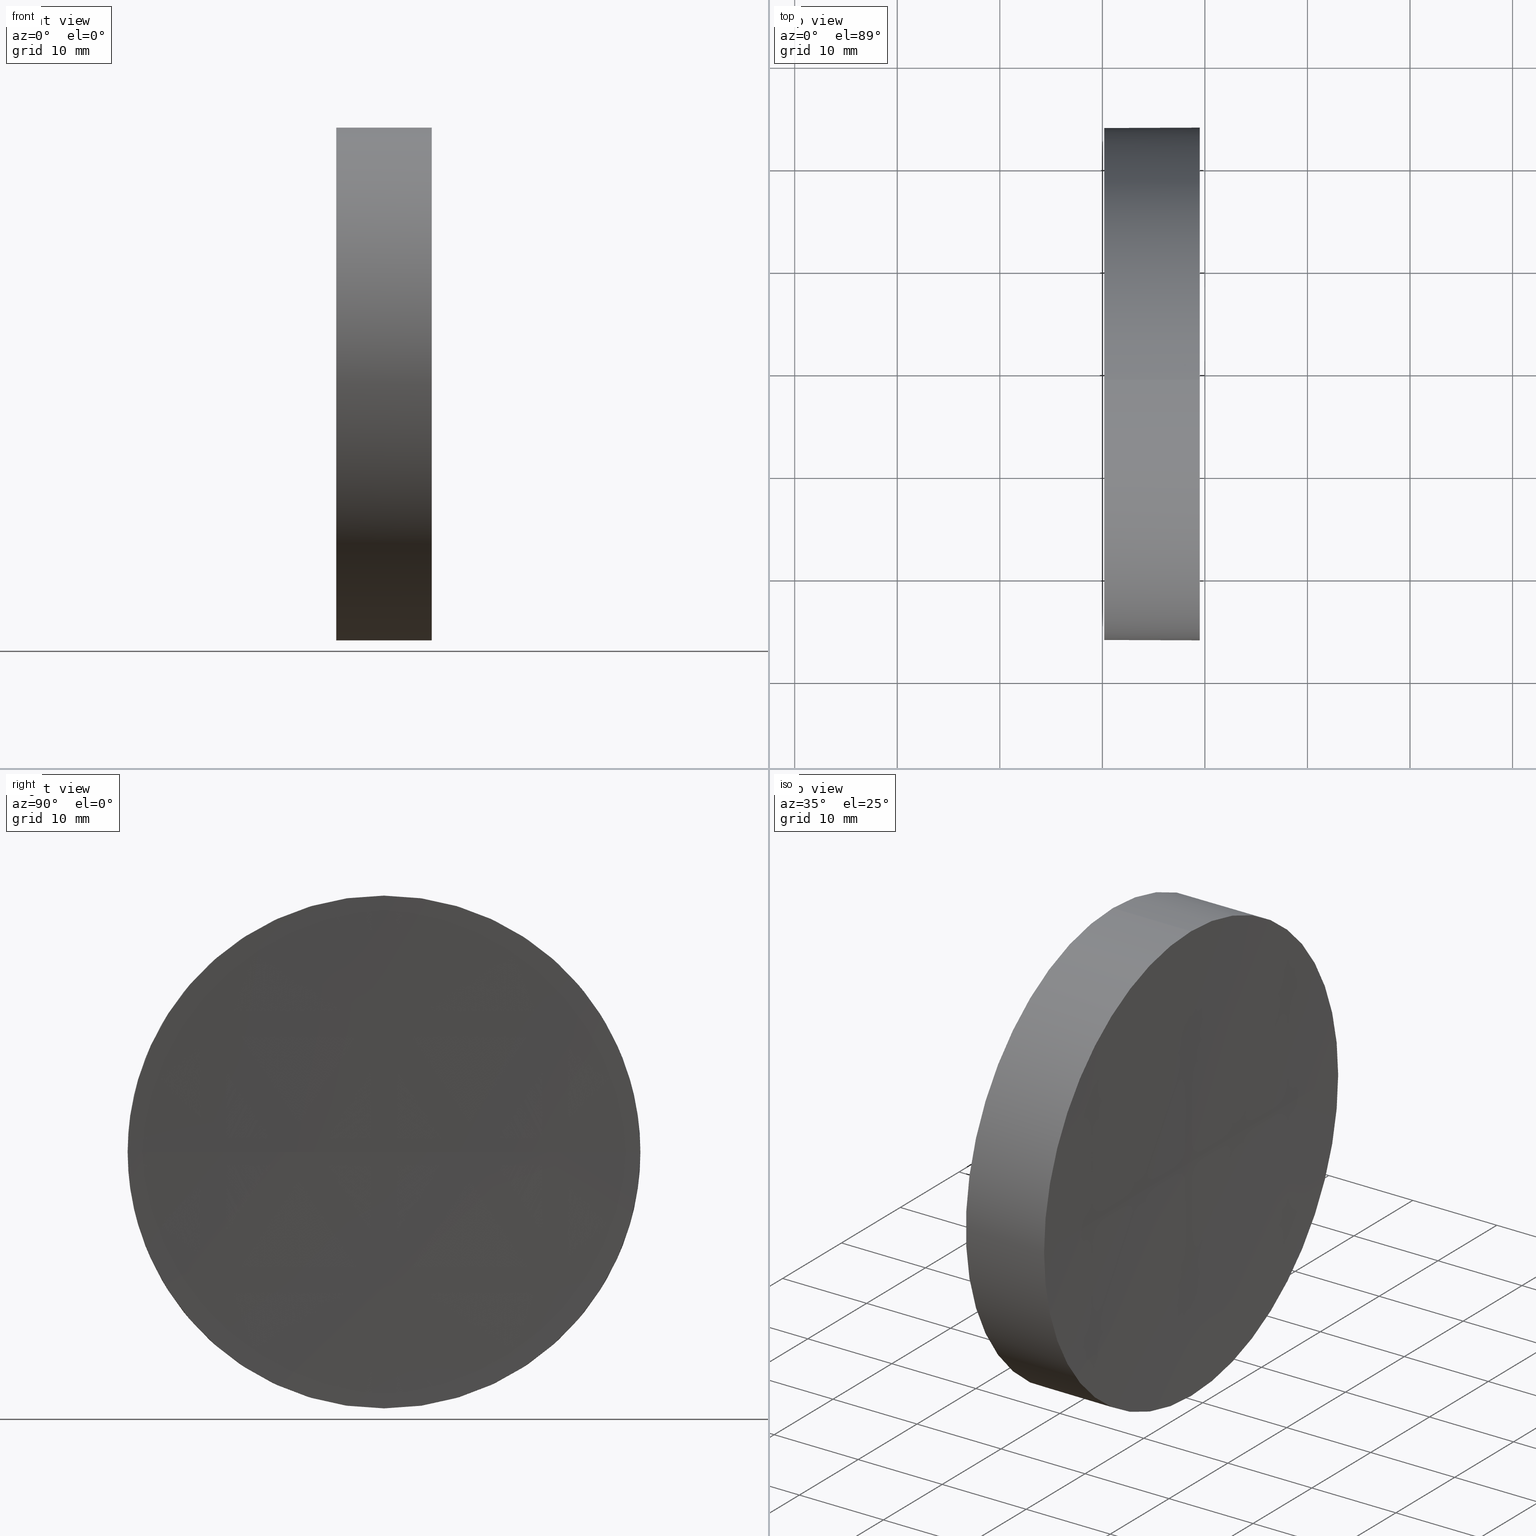
[diagram: canonical four-view strip — front | top / right | iso, engineering-drawing reading convention]
A machine part, canonical four-view strip (front | top / right | iso — engineering-drawing reading convention). The complete STEP part file that produces these views, byte-faithful:
ISO-10303-21;
HEADER;
FILE_DESCRIPTION (( 'STEP AP214' ),
    '1' );
FILE_NAME ('270049.STEP',
    '2019-07-23T05:48:23',
    ( '' ),
    ( '' ),
    'SwSTEP 2.0',
    'SolidWorks 2016',
    '' );
FILE_SCHEMA (( 'AUTOMOTIVE_DESIGN' ));
ENDSEC;

DATA;
#1 = PRODUCT_DEFINITION_FORMATION_WITH_SPECIFIED_SOURCE ( '�κ�', '', #77, .NOT_KNOWN. ) ;
#2 = FILL_AREA_STYLE_COLOUR ( '', #135 ) ;
#3 = SPHERICAL_SURFACE ( 'NONE', #92, 1000.000000000000000 ) ;
#4 = AXIS2_PLACEMENT_3D ( 'NONE', #45, #141, #72 ) ;
#5 = PRODUCT_DEFINITION_CONTEXT ( 'detailed design', #52, 'design' ) ;
#6 = DIRECTION ( 'NONE',  ( 0.0000000000000000000, 0.0000000000000000000, 1.000000000000000000 ) ) ;
#7 = PRODUCT_DEFINITION ( 'δ֪', '', #1, #5 ) ;
#8 = DIRECTION ( 'NONE',  ( -1.000000000000000000, -0.0000000000000000000, -0.0000000000000000000 ) ) ;
#9 = DIRECTION ( 'NONE',  ( 0.0000000000000000000, 1.000000000000000000, 1.224646799147353200E-016 ) ) ;
#10 = CARTESIAN_POINT ( 'NONE',  ( 230.1853110698390300, 138.7560422467448700, 0.0000000000000000000 ) ) ;
#11 = ORIENTED_EDGE ( 'NONE', *, *, #152, .F. ) ;
#12 = AXIS2_PLACEMENT_3D ( 'NONE', #10, #66, #128 ) ;
#13 = ADVANCED_FACE ( 'NONE', ( #114 ), #3, .F. ) ;
#14 = AXIS2_PLACEMENT_3D ( 'NONE', #182, #67, #76 ) ;
#15 = SHAPE_DEFINITION_REPRESENTATION ( #158, #131 ) ;
#16 = PRESENTATION_STYLE_ASSIGNMENT (( #31 ) ) ;
#17 = ORIENTED_EDGE ( 'NONE', *, *, #38, .T. ) ;
#18 = FILL_AREA_STYLE ('',( #2 ) ) ;
#19 = ORIENTED_EDGE ( 'NONE', *, *, #136, .F. ) ;
#20 =( NAMED_UNIT ( * ) PLANE_ANGLE_UNIT ( ) SI_UNIT ( $, .RADIAN. ) );
#21 =( NAMED_UNIT ( * ) SI_UNIT ( $, .STERADIAN. ) SOLID_ANGLE_UNIT ( ) );
#22 = DIRECTION ( 'NONE',  ( 0.0000000000000000000, 0.0000000000000000000, 1.000000000000000000 ) ) ;
#23 = CYLINDRICAL_SURFACE ( 'NONE', #49, 24.99999999999998200 ) ;
#24 = PRESENTATION_LAYER_ASSIGNMENT (  '', '', ( #116 ) ) ;
#25 = DIRECTION ( 'NONE',  ( 0.0000000000000000000, 1.000000000000000000, 0.0000000000000000000 ) ) ;
#26 = VECTOR ( 'NONE', #179, 1000.000000000000000 ) ;
#27 = ORIENTED_EDGE ( 'NONE', *, *, #164, .F. ) ;
#28 = AXIS2_PLACEMENT_3D ( 'NONE', #127, #132, #9 ) ;
#29 = PRODUCT_RELATED_PRODUCT_CATEGORY ( 'part', '', ( #77 ) ) ;
#30 = DIRECTION ( 'NONE',  ( 0.0000000000000000000, 0.0000000000000000000, 1.000000000000000000 ) ) ;
#31 = SURFACE_STYLE_USAGE ( .BOTH. , #159 ) ;
#32 = AXIS2_PLACEMENT_3D ( 'NONE', #112, #22, #113 ) ;
#33 = CARTESIAN_POINT ( 'NONE',  ( 217.9702860043302100, 138.7560422467448700, 24.99999999999998200 ) ) ;
#34 = APPLICATION_CONTEXT ( 'automotive_design' ) ;
#35 = ORIENTED_EDGE ( 'NONE', *, *, #139, .F. ) ;
#36 = FILL_AREA_STYLE ('',( #144 ) ) ;
#37 = PRODUCT_CONTEXT ( 'NONE', #34, 'mechanical' ) ;
#38 = EDGE_CURVE ( 'NONE', #115, #118, #81, .T. ) ;
#39 = FACE_OUTER_BOUND ( 'NONE', #121, .T. ) ;
#40 = ORIENTED_EDGE ( 'NONE', *, *, #79, .T. ) ;
#41 = DIRECTION ( 'NONE',  ( 0.0000000000000000000, 0.0000000000000000000, 1.000000000000000000 ) ) ;
#42 = DIRECTION ( 'NONE',  ( 0.0000000000000000000, 0.0000000000000000000, -1.000000000000000000 ) ) ;
#43 = ORIENTED_EDGE ( 'NONE', *, *, #83, .T. ) ;
#44 = CARTESIAN_POINT ( 'NONE',  ( 1239.185310015103100, 138.7560422467428800, 0.0000000000000000000 ) ) ;
#45 = CARTESIAN_POINT ( 'NONE',  ( 230.1853110698390300, 138.7560422467448700, 0.0000000000000000000 ) ) ;
#46 =( LENGTH_UNIT ( ) NAMED_UNIT ( * ) SI_UNIT ( .MILLI., .METRE. ) );
#47 = FACE_OUTER_BOUND ( 'NONE', #154, .T. ) ;
#48 = ORIENTED_EDGE ( 'NONE', *, *, #152, .T. ) ;
#49 = AXIS2_PLACEMENT_3D ( 'NONE', #109, #150, #147 ) ;
#50 = DIRECTION ( 'NONE',  ( -1.000000000000000000, -0.0000000000000000000, -0.0000000000000000000 ) ) ;
#51 = APPLICATION_PROTOCOL_DEFINITION ( 'draft international standard', 'automotive_design', 1998, #34 ) ;
#52 = APPLICATION_CONTEXT ( 'automotive_design' ) ;
#53 = MANIFOLD_SOLID_BREP ( '��ת1', #71 ) ;
#54 = ORIENTED_EDGE ( 'NONE', *, *, #79, .F. ) ;
#55 = CARTESIAN_POINT ( 'NONE',  ( 217.9702860043302100, 138.7560422467448700, 0.0000000000000000000 ) ) ;
#56 = PRESENTATION_LAYER_ASSIGNMENT (  '', '', ( #149 ) ) ;
#57 = ORIENTED_EDGE ( 'NONE', *, *, #124, .T. ) ;
#58 = AXIS2_PLACEMENT_3D ( 'NONE', #75, #166, #111 ) ;
#59 = VERTEX_POINT ( 'NONE', #61 ) ;
#60 = CARTESIAN_POINT ( 'NONE',  ( 217.9702860043302100, 138.7560422467448700, -24.99999999999998200 ) ) ;
#61 = CARTESIAN_POINT ( 'NONE',  ( 239.4978588584929200, 138.7560422467448700, -24.99999999999996800 ) ) ;
#62 = SPHERICAL_SURFACE ( 'NONE', #160, 1000.000000000000000 ) ;
#63 = AXIS2_PLACEMENT_3D ( 'NONE', #185, #50, #6 ) ;
#64 = CARTESIAN_POINT ( 'NONE',  ( 230.1853110698390300, 138.7560422467448700, -24.99999999999999600 ) ) ;
#65 = SURFACE_SIDE_STYLE ('',( #180 ) ) ;
#66 = DIRECTION ( 'NONE',  ( -1.000000000000000000, -0.0000000000000000000, -0.0000000000000000000 ) ) ;
#67 = DIRECTION ( 'NONE',  ( -1.000000000000000000, -0.0000000000000000000, -0.0000000000000000000 ) ) ;
#68 = ORIENTED_EDGE ( 'NONE', *, *, #136, .T. ) ;
#69 = SURFACE_STYLE_USAGE ( .BOTH. , #65 ) ;
#70 = COLOUR_RGB ( '',1.000000000000000000, 1.000000000000000000, 1.000000000000000000 ) ;
#71 = CLOSED_SHELL ( 'NONE', ( #168, #13, #148, #167, #90 ) ) ;
#72 = DIRECTION ( 'NONE',  ( 0.0000000000000000000, 0.0000000000000000000, -1.000000000000000000 ) ) ;
#73 = DIRECTION ( 'NONE',  ( -1.000000000000000000, -0.0000000000000000000, -0.0000000000000000000 ) ) ;
#74 = DIRECTION ( 'NONE',  ( -1.000000000000000000, -0.0000000000000000000, -0.0000000000000000000 ) ) ;
#75 = CARTESIAN_POINT ( 'NONE',  ( 0.0000000000000000000, 0.0000000000000000000, 0.0000000000000000000 ) ) ;
#76 = DIRECTION ( 'NONE',  ( 0.0000000000000000000, 0.0000000000000000000, 1.000000000000000000 ) ) ;
#77 = PRODUCT ( '270049', '270049', '', ( #37 ) ) ;
#78 = EDGE_LOOP ( 'NONE', ( #19, #27, #138, #48 ) ) ;
#79 = EDGE_CURVE ( 'NONE', #59, #110, #162, .T. ) ;
#80 = CIRCLE ( 'NONE', #32, 1000.000000000000200 ) ;
#81 = CIRCLE ( 'NONE', #104, 24.99999999999996800 ) ;
#82 = CIRCLE ( 'NONE', #63, 24.99999999999996800 ) ;
#83 = EDGE_CURVE ( 'NONE', #153, #110, #125, .T. ) ;
#84 = ORIENTED_EDGE ( 'NONE', *, *, #105, .T. ) ;
#85 = CARTESIAN_POINT ( 'NONE',  ( 230.1853110698390300, 138.7560422467448700, 0.0000000000000000000 ) ) ;
#86 = DIRECTION ( 'NONE',  ( 0.0000000000000000000, 0.0000000000000000000, 1.000000000000000000 ) ) ;
#87 = VERTEX_POINT ( 'NONE', #123 ) ;
#88 = DIRECTION ( 'NONE',  ( 0.0000000000000000000, 0.0000000000000000000, 1.000000000000000000 ) ) ;
#89 = CARTESIAN_POINT ( 'NONE',  ( 1239.185310015103100, 138.7560422467428800, 0.0000000000000000000 ) ) ;
#90 = ADVANCED_FACE ( 'NONE', ( #47 ), #142, .F. ) ;
#91 = EDGE_LOOP ( 'NONE', ( #35, #68, #11, #103 ) ) ;
#92 = AXIS2_PLACEMENT_3D ( 'NONE', #44, #42, #181 ) ;
#93 = EDGE_CURVE ( 'NONE', #118, #59, #137, .T. ) ;
#94 = UNCERTAINTY_MEASURE_WITH_UNIT (LENGTH_MEASURE( 1.000000000000000100E-005 ), #186, 'distance_accuracy_value', 'NONE');
#95 = DIRECTION ( 'NONE',  ( -1.000000000000000000, -0.0000000000000000000, -0.0000000000000000000 ) ) ;
#96 = CIRCLE ( 'NONE', #28, 1000.000000000000000 ) ;
#97 =( NAMED_UNIT ( * ) SI_UNIT ( $, .STERADIAN. ) SOLID_ANGLE_UNIT ( ) );
#98 = AXIS2_PLACEMENT_3D ( 'NONE', #161, #74, #88 ) ;
#99 = CARTESIAN_POINT ( 'NONE',  ( 239.4978588584929500, 113.7560422467429100, -3.061616997868377100E-015 ) ) ;
#100 = ORIENTED_EDGE ( 'NONE', *, *, #83, .F. ) ;
#101 = DIRECTION ( 'NONE',  ( -1.000000000000000000, -0.0000000000000000000, -0.0000000000000000000 ) ) ;
#102 = CIRCLE ( 'NONE', #14, 24.99999999999996800 ) ;
#103 = ORIENTED_EDGE ( 'NONE', *, *, #38, .F. ) ;
#104 = AXIS2_PLACEMENT_3D ( 'NONE', #140, #95, #41 ) ;
#105 = EDGE_CURVE ( 'NONE', #110, #153, #184, .T. ) ;
#106 =( NAMED_UNIT ( * ) PLANE_ANGLE_UNIT ( ) SI_UNIT ( $, .RADIAN. ) );
#107 = ORIENTED_EDGE ( 'NONE', *, *, #124, .F. ) ;
#108 = MECHANICAL_DESIGN_GEOMETRIC_PRESENTATION_REPRESENTATION (  '', ( #149 ), #157 ) ;
#109 = CARTESIAN_POINT ( 'NONE',  ( 217.9702860043302100, 138.7560422467448700, 0.0000000000000000000 ) ) ;
#110 = VERTEX_POINT ( 'NONE', #64 ) ;
#111 = DIRECTION ( 'NONE',  ( 1.000000000000000000, 0.0000000000000000000, 0.0000000000000000000 ) ) ;
#112 = CARTESIAN_POINT ( 'NONE',  ( 1239.185310015103100, 138.7560422467428800, 0.0000000000000000000 ) ) ;
#113 = DIRECTION ( 'NONE',  ( 1.000000000000000000, 0.0000000000000000000, 0.0000000000000000000 ) ) ;
#114 = FACE_OUTER_BOUND ( 'NONE', #91, .T. ) ;
#115 = VERTEX_POINT ( 'NONE', #155 ) ;
#116 = STYLED_ITEM ( 'NONE', ( #175 ), #131 ) ;
#117 = VECTOR ( 'NONE', #8, 1000.000000000000000 ) ;
#118 = VERTEX_POINT ( 'NONE', #146 ) ;
#119 =( GEOMETRIC_REPRESENTATION_CONTEXT ( 3 ) GLOBAL_UNCERTAINTY_ASSIGNED_CONTEXT ( ( #173 ) ) GLOBAL_UNIT_ASSIGNED_CONTEXT ( ( #165, #183, #21 ) ) REPRESENTATION_CONTEXT ( 'NONE', 'WORKASPACE' ) );
#120 = MECHANICAL_DESIGN_GEOMETRIC_PRESENTATION_REPRESENTATION (  '', ( #116 ), #163 ) ;
#121 = EDGE_LOOP ( 'NONE', ( #54, #156, #129, #57, #172 ) ) ;
#122 =( NAMED_UNIT ( * ) SI_UNIT ( $, .STERADIAN. ) SOLID_ANGLE_UNIT ( ) );
#123 = CARTESIAN_POINT ( 'NONE',  ( 239.1853100151031100, 138.7560422467429400, 0.0000000000000000000 ) ) ;
#124 = EDGE_CURVE ( 'NONE', #115, #153, #169, .T. ) ;
#125 = CIRCLE ( 'NONE', #174, 24.99999999999999300 ) ;
#126 = DIRECTION ( 'NONE',  ( 0.0000000000000000000, 0.0000000000000000000, -1.000000000000000000 ) ) ;
#127 = CARTESIAN_POINT ( 'NONE',  ( 1239.185310015103100, 138.7560422467428800, 0.0000000000000000000 ) ) ;
#128 = DIRECTION ( 'NONE',  ( 0.0000000000000000000, 0.0000000000000000000, 1.000000000000000000 ) ) ;
#129 = ORIENTED_EDGE ( 'NONE', *, *, #139, .T. ) ;
#130 = CARTESIAN_POINT ( 'NONE',  ( 230.1853110698390300, 138.7560422467448700, 24.99999999999999300 ) ) ;
#131 = ADVANCED_BREP_SHAPE_REPRESENTATION ( '270049', ( #53, #58 ), #119 ) ;
#132 = DIRECTION ( 'NONE',  ( 0.0000000000000000000, 1.224646799147353200E-016, -1.000000000000000000 ) ) ;
#133 = APPLICATION_PROTOCOL_DEFINITION ( 'draft international standard', 'automotive_design', 1998, #52 ) ;
#134 = CYLINDRICAL_SURFACE ( 'NONE', #143, 24.99999999999998200 ) ;
#135 = COLOUR_RGB ( '',1.000000000000000000, 1.000000000000000000, 1.000000000000000000 ) ;
#136 = EDGE_CURVE ( 'NONE', #178, #87, #96, .T. ) ;
#137 = CIRCLE ( 'NONE', #98, 24.99999999999996800 ) ;
#138 = ORIENTED_EDGE ( 'NONE', *, *, #93, .F. ) ;
#139 = EDGE_CURVE ( 'NONE', #178, #115, #102, .T. ) ;
#140 = CARTESIAN_POINT ( 'NONE',  ( 239.4978588584929200, 138.7560422467448700, 0.0000000000000000000 ) ) ;
#141 = DIRECTION ( 'NONE',  ( 1.000000000000000000, 0.0000000000000000000, 0.0000000000000000000 ) ) ;
#142 = PLANE ( 'NONE',  #4 ) ;
#143 = AXIS2_PLACEMENT_3D ( 'NONE', #55, #101, #86 ) ;
#144 = FILL_AREA_STYLE_COLOUR ( '', #70 ) ;
#145 = EDGE_LOOP ( 'NONE', ( #171, #40, #100, #107, #17 ) ) ;
#146 = CARTESIAN_POINT ( 'NONE',  ( 239.4978588584929500, 163.7560422467448400, 0.0000000000000000000 ) ) ;
#147 = DIRECTION ( 'NONE',  ( 0.0000000000000000000, 0.0000000000000000000, 1.000000000000000000 ) ) ;
#148 = ADVANCED_FACE ( 'NONE', ( #151 ), #62, .F. ) ;
#149 = STYLED_ITEM ( 'NONE', ( #16 ), #53 ) ;
#150 = DIRECTION ( 'NONE',  ( -1.000000000000000000, -0.0000000000000000000, -0.0000000000000000000 ) ) ;
#151 = FACE_OUTER_BOUND ( 'NONE', #78, .T. ) ;
#152 = EDGE_CURVE ( 'NONE', #118, #87, #80, .T. ) ;
#153 = VERTEX_POINT ( 'NONE', #130 ) ;
#154 = EDGE_LOOP ( 'NONE', ( #43, #84 ) ) ;
#155 = CARTESIAN_POINT ( 'NONE',  ( 239.4978588584929200, 138.7560422467448700, 24.99999999999996800 ) ) ;
#156 = ORIENTED_EDGE ( 'NONE', *, *, #164, .T. ) ;
#157 =( GEOMETRIC_REPRESENTATION_CONTEXT ( 3 ) GLOBAL_UNCERTAINTY_ASSIGNED_CONTEXT ( ( #170 ) ) GLOBAL_UNIT_ASSIGNED_CONTEXT ( ( #46, #106, #122 ) ) REPRESENTATION_CONTEXT ( 'NONE', 'WORKASPACE' ) );
#158 = PRODUCT_DEFINITION_SHAPE ( 'NONE', 'NONE',  #7 ) ;
#159 = SURFACE_SIDE_STYLE ('',( #176 ) ) ;
#160 = AXIS2_PLACEMENT_3D ( 'NONE', #89, #126, #25 ) ;
#161 = CARTESIAN_POINT ( 'NONE',  ( 239.4978588584929200, 138.7560422467448700, 0.0000000000000000000 ) ) ;
#162 = LINE ( 'NONE', #60, #26 ) ;
#163 =( GEOMETRIC_REPRESENTATION_CONTEXT ( 3 ) GLOBAL_UNCERTAINTY_ASSIGNED_CONTEXT ( ( #94 ) ) GLOBAL_UNIT_ASSIGNED_CONTEXT ( ( #186, #20, #97 ) ) REPRESENTATION_CONTEXT ( 'NONE', 'WORKASPACE' ) );
#164 = EDGE_CURVE ( 'NONE', #59, #178, #82, .T. ) ;
#165 =( LENGTH_UNIT ( ) NAMED_UNIT ( * ) SI_UNIT ( .MILLI., .METRE. ) );
#166 = DIRECTION ( 'NONE',  ( 0.0000000000000000000, 0.0000000000000000000, 1.000000000000000000 ) ) ;
#167 = ADVANCED_FACE ( 'NONE', ( #39 ), #134, .T. ) ;
#168 = ADVANCED_FACE ( 'NONE', ( #177 ), #23, .T. ) ;
#169 = LINE ( 'NONE', #33, #117 ) ;
#170 = UNCERTAINTY_MEASURE_WITH_UNIT (LENGTH_MEASURE( 1.000000000000000100E-005 ), #46, 'distance_accuracy_value', 'NONE');
#171 = ORIENTED_EDGE ( 'NONE', *, *, #93, .T. ) ;
#172 = ORIENTED_EDGE ( 'NONE', *, *, #105, .F. ) ;
#173 = UNCERTAINTY_MEASURE_WITH_UNIT (LENGTH_MEASURE( 1.000000000000000100E-005 ), #165, 'distance_accuracy_value', 'NONE');
#174 = AXIS2_PLACEMENT_3D ( 'NONE', #85, #73, #30 ) ;
#175 = PRESENTATION_STYLE_ASSIGNMENT (( #69 ) ) ;
#176 = SURFACE_STYLE_FILL_AREA ( #18 ) ;
#177 = FACE_OUTER_BOUND ( 'NONE', #145, .T. ) ;
#178 = VERTEX_POINT ( 'NONE', #99 ) ;
#179 = DIRECTION ( 'NONE',  ( -1.000000000000000000, -0.0000000000000000000, -0.0000000000000000000 ) ) ;
#180 = SURFACE_STYLE_FILL_AREA ( #36 ) ;
#181 = DIRECTION ( 'NONE',  ( 0.0000000000000000000, 1.000000000000000000, 0.0000000000000000000 ) ) ;
#182 = CARTESIAN_POINT ( 'NONE',  ( 239.4978588584929200, 138.7560422467448700, 0.0000000000000000000 ) ) ;
#183 =( NAMED_UNIT ( * ) PLANE_ANGLE_UNIT ( ) SI_UNIT ( $, .RADIAN. ) );
#184 = CIRCLE ( 'NONE', #12, 24.99999999999999300 ) ;
#185 = CARTESIAN_POINT ( 'NONE',  ( 239.4978588584929200, 138.7560422467448700, 0.0000000000000000000 ) ) ;
#186 =( LENGTH_UNIT ( ) NAMED_UNIT ( * ) SI_UNIT ( .MILLI., .METRE. ) );
ENDSEC;
END-ISO-10303-21;
